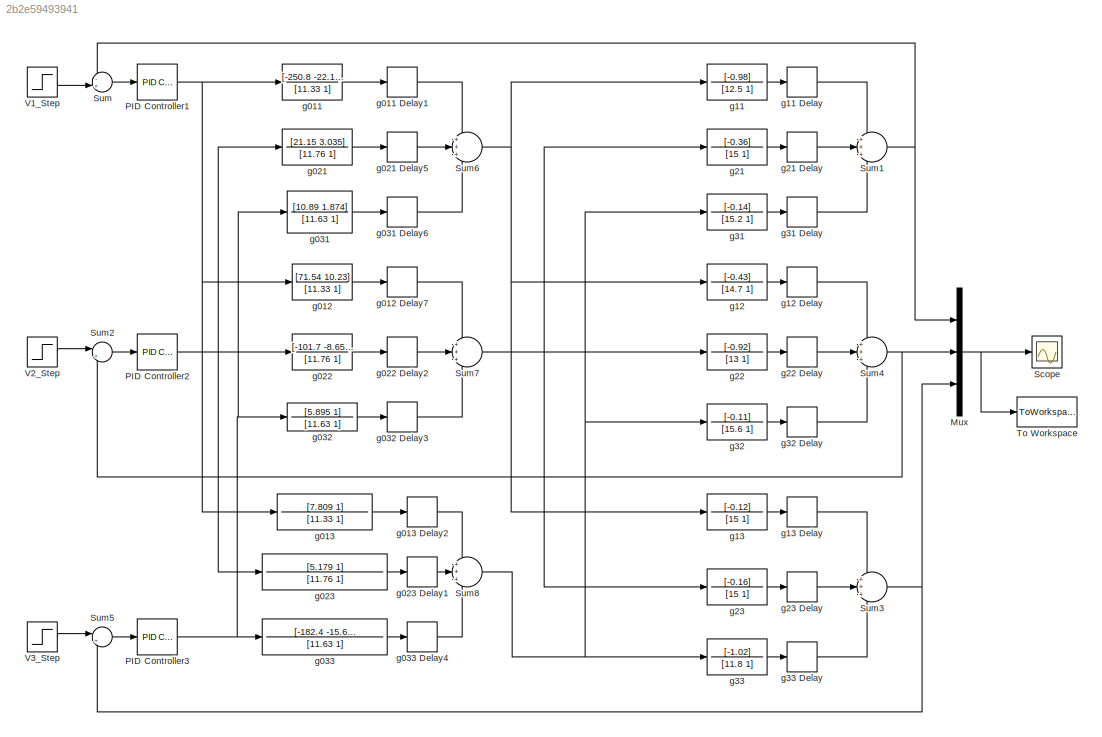
MODEL slx_2b2e59493941
KIND model
CONFIG AbsTol = auto
CONFIG EnableMultiTasking = on
CONFIG FixedStep = auto
CONFIG MaxStep = auto
CONFIG MinStep = auto
CONFIG RelTol = 1e-3
CONFIG SampleTimeConstraint = Unconstrained
CONFIG Solver = VariableStepAuto
CONFIG SolverName = VariableStepAuto
CONFIG StartTime = 0.0
CONFIG StopTime = 3000
BLOCK [Mux] Mux
  DisplayOption = bar
  Inputs = 3
  Ports = [3, 1]
BLOCK [Reference] PID Controller1  REF=simulink/Continuous/PID Controller
  Ports = [1, 1]
  SourceBlock = simulink/Continuous/PID Controller
  SourceProductBaseCode = SL
  SourceProductName = Simulink
  SourceType = PID 1dof
BLOCK [Reference] PID Controller2  REF=simulink/Continuous/PID Controller
  Ports = [1, 1]
  SourceBlock = simulink/Continuous/PID Controller
  SourceProductBaseCode = SL
  SourceProductName = Simulink
  SourceType = PID 1dof
BLOCK [Reference] PID Controller3  REF=simulink/Continuous/PID Controller
  Ports = [1, 1]
  SourceBlock = simulink/Continuous/PID Controller
  SourceProductBaseCode = SL
  SourceProductName = Simulink
  SourceType = PID 1dof
BLOCK [Scope] Scope
  Floating = off
  NumInputPorts = 1
  Ports = [1]
  ScopeSpecificationString = Simulink.scopes.TimeScopeBlockCfg('CurrentConfiguration', extmgr.ConfigurationSet(extmgr.Configuration('Core','General UI',true),extmgr.Configuration('Core','Source UI',true),extmgr.Configuration('Sources','WiredSimulink',true,'DataLoggingLimitDataPoints',true,'DataLoggingSaveFormat','Array','DataLoggingDecimation','1','DataLoggingDecimateData',true),extmgr.Configuration('Visuals','Time Domain',tr...<+1641ch>
BLOCK [Sum] Sum
  IconShape = round
  InputSameDT = off
  Inputs = -+|
  OutDataTypeStr = Inherit: Inherit via internal rule
  Ports = [2, 1]
  SaturateOnIntegerOverflow = off
BLOCK [Sum] Sum1
  IconShape = round
  InputSameDT = off
  Inputs = +++
  OutDataTypeStr = Inherit: Inherit via internal rule
  Ports = [3, 1]
  SaturateOnIntegerOverflow = off
BLOCK [Sum] Sum2
  IconShape = round
  InputSameDT = off
  Inputs = |+-
  OutDataTypeStr = Inherit: Inherit via internal rule
  Ports = [2, 1]
  SaturateOnIntegerOverflow = off
BLOCK [Sum] Sum3
  IconShape = round
  InputSameDT = off
  Inputs = +++
  OutDataTypeStr = Inherit: Inherit via internal rule
  Ports = [3, 1]
  SaturateOnIntegerOverflow = off
BLOCK [Sum] Sum4
  IconShape = round
  InputSameDT = off
  Inputs = +++
  OutDataTypeStr = Inherit: Inherit via internal rule
  Ports = [3, 1]
  SaturateOnIntegerOverflow = off
BLOCK [Sum] Sum5
  IconShape = round
  InputSameDT = off
  Inputs = |+-
  OutDataTypeStr = Inherit: Inherit via internal rule
  Ports = [2, 1]
  SaturateOnIntegerOverflow = off
BLOCK [Sum] Sum6
  IconShape = round
  InputSameDT = off
  Inputs = +++
  OutDataTypeStr = Inherit: Inherit via internal rule
  Ports = [3, 1]
  SaturateOnIntegerOverflow = off
BLOCK [Sum] Sum7
  IconShape = round
  InputSameDT = off
  Inputs = +++
  OutDataTypeStr = Inherit: Inherit via internal rule
  Ports = [3, 1]
  SaturateOnIntegerOverflow = off
BLOCK [Sum] Sum8
  IconShape = round
  InputSameDT = off
  Inputs = +++
  OutDataTypeStr = Inherit: Inherit via internal rule
  Ports = [3, 1]
  SaturateOnIntegerOverflow = off
BLOCK [ToWorkspace] To Workspace
  FixptAsFi = on
  MaxDataPoints = inf
  Ports = [1]
  SampleTime = -1
  Save2DSignal = 3-D array (concatenate along third dimension)
  SaveFormat = Timeseries
  VariableName = simout
BLOCK [Step] V1_Step
  SampleTime = 0
  Time = 2
BLOCK [Step] V2_Step
  SampleTime = 0
  Time = 500
BLOCK [Step] V3_Step
  SampleTime = 0
  Time = 1000
BLOCK [TransferFcn] g011
  Denominator = [11.33 1]
  Numerator = [-250.8 -22.13]
BLOCK [TransportDelay] g011 Delay1
  DelayTime = 1.03
  Ports = [1, 1]
BLOCK [TransferFcn] g012
  Denominator = [11.33 1]
  Numerator = [71.54 10.23]
BLOCK [TransportDelay] g012 Delay7
  DelayTime = 3.85
  Ports = [1, 1]
BLOCK [TransferFcn] g013
  Denominator = [11.33 1]
  Numerator = [7.809 1]
BLOCK [TransportDelay] g013 Delay2
  DelayTime = 0
  Ports = [1, 1]
BLOCK [TransferFcn] g021
  Denominator = [11.76 1]
  Numerator = [21.15 3.035]
BLOCK [TransportDelay] g021 Delay5
  DelayTime = 2.62
  Ports = [1, 1]
BLOCK [TransferFcn] g022
  Denominator = [11.76 1]
  Numerator = [-101.7 -8.651]
BLOCK [TransportDelay] g022 Delay2
  DelayTime = 0
  Ports = [1, 1]
BLOCK [TransferFcn] g023
  Denominator = [11.76 1]
  Numerator = [5.179 1]
BLOCK [TransportDelay] g023 Delay1
  DelayTime = 3.52
  Ports = [1, 1]
BLOCK [TransferFcn] g031
  Denominator = [11.63 1]
  Numerator = [10.89 1.874]
BLOCK [TransportDelay] g031 Delay6
  DelayTime = 3.75
  Ports = [1, 1]
BLOCK [TransferFcn] g032
  Denominator = [11.63 1]
  Numerator = [5.895 1]
BLOCK [TransportDelay] g032 Delay3
  DelayTime = 2.4
  Ports = [1, 1]
BLOCK [TransferFcn] g033
  Denominator = [11.63 1]
  Numerator = [-182.4 -15.69]
BLOCK [TransportDelay] g033 Delay4
  DelayTime = 0
  Ports = [1, 1]
BLOCK [TransferFcn] g11
  Denominator = [12.5 1]
  Numerator = [-0.98]
BLOCK [TransportDelay] g11 Delay
  DelayTime = 17
  Ports = [1, 1]
BLOCK [TransferFcn] g12
  Denominator = [14.7 1]
  Numerator = [-0.43]
BLOCK [TransportDelay] g12 Delay
  DelayTime = 25
  Ports = [1, 1]
BLOCK [TransferFcn] g13
  Denominator = [15 1]
  Numerator = [-0.12]
BLOCK [TransportDelay] g13 Delay
  DelayTime = 31
  Ports = [1, 1]
BLOCK [TransferFcn] g21
  Denominator = [15 1]
  Numerator = [-0.36]
BLOCK [TransportDelay] g21 Delay
  DelayTime = 27
  Ports = [1, 1]
BLOCK [TransferFcn] g22
  Denominator = [13 1]
  Numerator = [-0.92]
BLOCK [TransportDelay] g22 Delay
  DelayTime = 16
  Ports = [1, 1]
BLOCK [TransferFcn] g23
  Denominator = [15 1]
  Numerator = [-0.16]
BLOCK [TransportDelay] g23 Delay
  DelayTime = 34
  Ports = [1, 1]
BLOCK [TransferFcn] g31
  Denominator = [15.2 1]
  Numerator = [-0.14]
BLOCK [TransportDelay] g31 Delay
  DelayTime = 32
  Ports = [1, 1]
BLOCK [TransferFcn] g32
  Denominator = [15.6 1]
  Numerator = [-0.11]
BLOCK [TransportDelay] g32 Delay
  DelayTime = 33
  Ports = [1, 1]
BLOCK [TransferFcn] g33
  Denominator = [11.8 1]
  Numerator = [-1.02]
BLOCK [TransportDelay] g33 Delay
  DelayTime = 16
  Ports = [1, 1]
NET Mux:1 -> Scope:1, To Workspace:1
NET PID Controller1:1 -> g011:1, g012:1, g013:1
NET PID Controller2:1 -> g021:1, g022:1, g023:1
NET PID Controller3:1 -> g031:1, g032:1, g033:1
NET Sum1:1 -> Mux:1, Sum:1
LINE Sum2:1 -> PID Controller2:1
NET Sum3:1 -> Mux:3, Sum5:2
NET Sum4:1 -> Mux:2, Sum2:2
LINE Sum5:1 -> PID Controller3:1
NET Sum6:1 -> g11:1, g12:1, g13:1
NET Sum7:1 -> g21:1, g22:1, g23:1
NET Sum8:1 -> g31:1, g32:1, g33:1
LINE Sum:1 -> PID Controller1:1
LINE V1_Step:1 -> Sum:2
LINE V2_Step:1 -> Sum2:1
LINE V3_Step:1 -> Sum5:1
LINE g011 Delay1:1 -> Sum6:1
LINE g011:1 -> g011 Delay1:1
LINE g012 Delay7:1 -> Sum7:1
LINE g012:1 -> g012 Delay7:1
LINE g013 Delay2:1 -> Sum8:1
LINE g013:1 -> g013 Delay2:1
LINE g021 Delay5:1 -> Sum6:2
LINE g021:1 -> g021 Delay5:1
LINE g022 Delay2:1 -> Sum7:2
LINE g022:1 -> g022 Delay2:1
LINE g023 Delay1:1 -> Sum8:2
LINE g023:1 -> g023 Delay1:1
LINE g031 Delay6:1 -> Sum6:3
LINE g031:1 -> g031 Delay6:1
LINE g032 Delay3:1 -> Sum7:3
LINE g032:1 -> g032 Delay3:1
LINE g033 Delay4:1 -> Sum8:3
LINE g033:1 -> g033 Delay4:1
LINE g11 Delay:1 -> Sum1:1
LINE g11:1 -> g11 Delay:1
LINE g12 Delay:1 -> Sum4:1
LINE g12:1 -> g12 Delay:1
LINE g13 Delay:1 -> Sum3:1
LINE g13:1 -> g13 Delay:1
LINE g21 Delay:1 -> Sum1:2
LINE g21:1 -> g21 Delay:1
LINE g22 Delay:1 -> Sum4:2
LINE g22:1 -> g22 Delay:1
LINE g23 Delay:1 -> Sum3:2
LINE g23:1 -> g23 Delay:1
LINE g31 Delay:1 -> Sum1:3
LINE g31:1 -> g31 Delay:1
LINE g32 Delay:1 -> Sum4:3
LINE g32:1 -> g32 Delay:1
LINE g33 Delay:1 -> Sum3:3
LINE g33:1 -> g33 Delay:1
note: NET lines group one-source signal fan-out (src -> all destinations, sorted); 1:1 wires keep LINE
